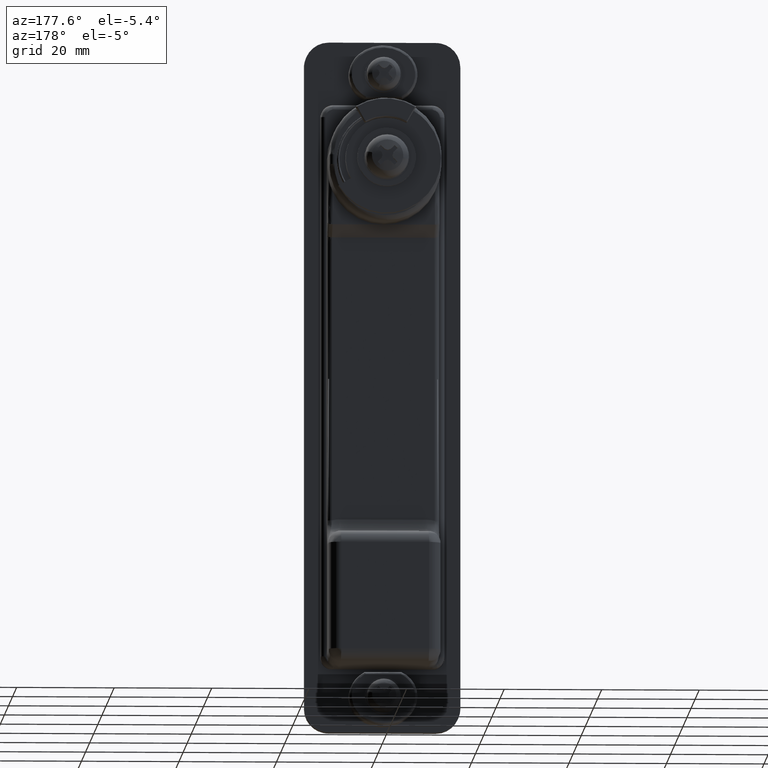
[diagram: clean part render]
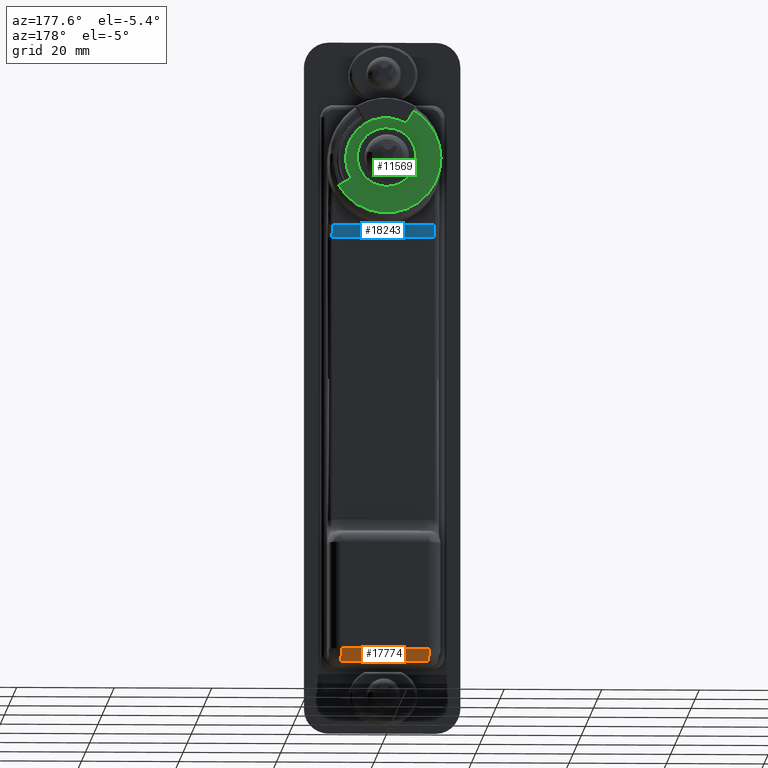
[diagram: same view with three faces highlighted in distinct colors, each labeled with its STEP entity id]
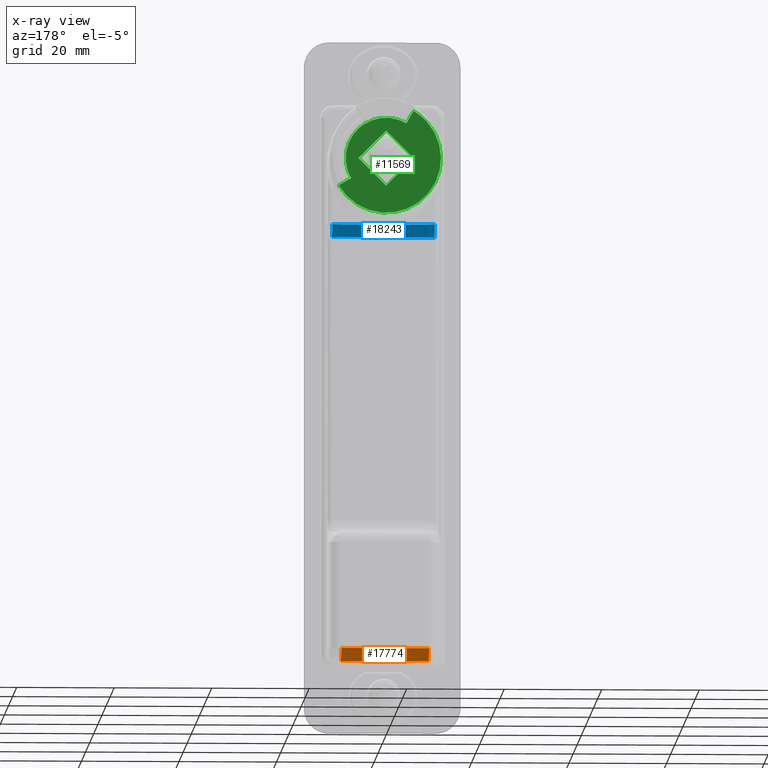
[diagram: x-ray of the same camera — body ghosted, the three highlighted faces saturated]
A machine part, auxiliary view with three faces highlighted in distinct colors.
The next image is the same camera in x-ray (body ghosted, the three faces saturated) — at least one of them is partly hidden behind the body in this view.
Their STEP definitions:

[orange] entity #17774 — the highlighted face is a freeform B-spline surface patch.
#16136=CARTESIAN_POINT('',(12.374752475247600,-9.0,-102.873052866758200));
#16137=VERTEX_POINT('',#16136);
#16152=CARTESIAN_POINT('',(12.374752475247600,9.0,-102.873052866758200));
#16153=VERTEX_POINT('',#16152);
#16167=CARTESIAN_POINT('',(12.374752475247600,9.0,-102.873052866758200));
#16168=CARTESIAN_POINT('',(12.374752475247600,-9.0,-102.873052866758200));
#16169=QUASI_UNIFORM_CURVE('',1,(#16167,#16168),.UNSPECIFIED.,.F.,.U.);
#16170=EDGE_CURVE('',#16153,#16137,#16169,.T.);
#16612=CARTESIAN_POINT('',(14.600000000000000,-9.0,-100.388196517319600));
#16613=VERTEX_POINT('',#16612);
#16628=CARTESIAN_POINT('',(14.600000000000000,-9.0,-100.388196517319600));
#16629=CARTESIAN_POINT('',(14.600000000000005,-9.0,-102.627005538669200));
#16630=CARTESIAN_POINT('',(12.374752475247600,-9.0,-102.873052866758200));
#16638=(BOUNDED_CURVE()B_SPLINE_CURVE(2,(#16628,#16629,#16630),.UNSPECIFIED.,.F.,.U.)CURVE()GEOMETRIC_REPRESENTATION_ITEM()QUASI_UNIFORM_CURVE()RATIONAL_B_SPLINE_CURVE((1.0,0.744949994999342,1.0))REPRESENTATION_ITEM(''));
#16639=EDGE_CURVE('',#16613,#16137,#16638,.T.);
#16668=CARTESIAN_POINT('',(14.600000000000000,9.0,-100.388196517319600));
#16669=VERTEX_POINT('',#16668);
#16670=CARTESIAN_POINT('',(14.600000000000000,9.0,-100.388196517319600));
#16671=CARTESIAN_POINT('',(14.600000000000005,9.0,-102.627005538669200));
#16672=CARTESIAN_POINT('',(12.374752475247600,9.0,-102.873052866758200));
#16680=(BOUNDED_CURVE()B_SPLINE_CURVE(2,(#16670,#16671,#16672),.UNSPECIFIED.,.F.,.U.)CURVE()GEOMETRIC_REPRESENTATION_ITEM()QUASI_UNIFORM_CURVE()RATIONAL_B_SPLINE_CURVE((1.0,0.744949994999342,1.0))REPRESENTATION_ITEM(''));
#16681=EDGE_CURVE('',#16669,#16153,#16680,.T.);
#17750=CARTESIAN_POINT('',(12.296147739319609,-9.450000000000003,-102.880489851652400));
#17751=CARTESIAN_POINT('',(12.296147739319609,9.461250000000000,-102.880489851652400));
#17752=CARTESIAN_POINT('',(14.758359767171408,-9.450000000000003,-102.686709562496390));
#17753=CARTESIAN_POINT('',(14.758359767171408,9.461249999999998,-102.686709562496390));
#17754=CARTESIAN_POINT('',(14.594491329748074,-9.450000000000001,-100.222326068439500));
#17755=CARTESIAN_POINT('',(14.594491329748074,9.461249999999998,-100.222326068439500));
#17763=(BOUNDED_SURFACE()B_SPLINE_SURFACE(1,2,((#17750,#17752,#17754),(#17751,#17753,#17755)),.UNSPECIFIED.,.F.,.F.,.U.)B_SPLINE_SURFACE_WITH_KNOTS((2,2),(3,3),(0.0,18.911249999999999),(0.0,4.106607102734476),.UNSPECIFIED.)GEOMETRIC_REPRESENTATION_ITEM()RATIONAL_B_SPLINE_SURFACE(((1.0,0.709615372246930,0.995025789369894),(1.0,0.709615372246930,0.995025789369894)))REPRESENTATION_ITEM('')SURFACE());
#17764=ORIENTED_EDGE('',*,*,#16639,.T.);
#17765=ORIENTED_EDGE('',*,*,#16170,.F.);
#17766=ORIENTED_EDGE('',*,*,#16681,.F.);
#17767=CARTESIAN_POINT('',(14.600000000000000,-9.0,-100.388196517319600));
#17768=CARTESIAN_POINT('',(14.600000000000000,9.0,-100.388196517319600));
#17769=QUASI_UNIFORM_CURVE('',1,(#17767,#17768),.UNSPECIFIED.,.F.,.U.);
#17770=EDGE_CURVE('',#16613,#16669,#17769,.T.);
#17771=ORIENTED_EDGE('',*,*,#17770,.F.);
#17772=EDGE_LOOP('',(#17764,#17765,#17766,#17771));
#17773=FACE_OUTER_BOUND('',#17772,.T.);
#17774=ADVANCED_FACE('',(#17773),#17763,.T.);

[blue] entity #18243 — the highlighted face is a freeform B-spline surface patch.
#17031=CARTESIAN_POINT('',(7.450462000000099,0.0,-12.500000000000000));
#17032=VERTEX_POINT('',#17031);
#17103=CARTESIAN_POINT('',(7.450462000000000,10.500000000000000,-12.500000000000000));
#17104=VERTEX_POINT('',#17103);
#17144=CARTESIAN_POINT('',(5.0,10.500000000000000,-14.950462000000060));
#17145=VERTEX_POINT('',#17144);
#17146=CARTESIAN_POINT('',(5.0,10.500000000000000,-14.950462000000060));
#17147=CARTESIAN_POINT('',(7.450462000000000,10.500000000000000,-12.500000000000000));
#17148=QUASI_UNIFORM_CURVE('',1,(#17146,#17147),.UNSPECIFIED.,.F.,.U.);
#17149=EDGE_CURVE('',#17145,#17104,#17148,.T.);
#17661=CARTESIAN_POINT('',(5.0,-10.500000000000000,-14.950462000000060));
#17662=VERTEX_POINT('',#17661);
#17700=CARTESIAN_POINT('',(7.450462000000000,-10.500000000000000,-12.500000000000000));
#17701=VERTEX_POINT('',#17700);
#17717=CARTESIAN_POINT('',(7.450462000000000,-10.500000000000000,-12.500000000000000));
#17718=CARTESIAN_POINT('',(5.0,-10.500000000000000,-14.950462000000060));
#17719=QUASI_UNIFORM_CURVE('',1,(#17717,#17718),.UNSPECIFIED.,.F.,.U.);
#17720=EDGE_CURVE('',#17701,#17662,#17719,.T.);
#18204=CARTESIAN_POINT('',(7.450462000000000,-10.500000000000000,-12.500000000000000));
#18205=CARTESIAN_POINT('',(7.450462000000099,0.0,-12.500000000000000));
#18206=QUASI_UNIFORM_CURVE('',1,(#18204,#18205),.UNSPECIFIED.,.F.,.U.);
#18207=EDGE_CURVE('',#17701,#17032,#18206,.T.);
#18217=CARTESIAN_POINT('',(7.450462000000099,0.0,-12.500000000000000));
#18218=CARTESIAN_POINT('',(7.450462000000000,10.500000000000000,-12.500000000000000));
#18219=QUASI_UNIFORM_CURVE('',1,(#18217,#18218),.UNSPECIFIED.,.F.,.U.);
#18220=EDGE_CURVE('',#17032,#17104,#18219,.T.);
#18227=CARTESIAN_POINT('',(7.572862511895801,-11.548949959297930,-12.377599488104201));
#18228=CARTESIAN_POINT('',(4.877599181380488,-11.548949959297930,-15.072862818619511));
#18229=CARTESIAN_POINT('',(7.572862511895801,11.548950522561819,-12.377599488104201));
#18230=CARTESIAN_POINT('',(4.877599181380488,11.548950522561819,-15.072862818619511));
#18231=B_SPLINE_SURFACE_WITH_KNOTS('',1,1,((#18227,#18229),(#18228,#18230)),.UNSPECIFIED.,.F.,.F.,.U.,(2,2),(2,2),(0.0,3.811677956181631),(0.0,23.097900481859750),.UNSPECIFIED.);
#18232=CARTESIAN_POINT('',(5.0,-10.500000000000000,-14.950462000000060));
#18233=CARTESIAN_POINT('',(5.0,10.500000000000000,-14.950462000000060));
#18234=QUASI_UNIFORM_CURVE('',1,(#18232,#18233),.UNSPECIFIED.,.F.,.U.);
#18235=EDGE_CURVE('',#17662,#17145,#18234,.T.);
#18236=ORIENTED_EDGE('',*,*,#18235,.T.);
#18237=ORIENTED_EDGE('',*,*,#17149,.T.);
#18238=ORIENTED_EDGE('',*,*,#18220,.F.);
#18239=ORIENTED_EDGE('',*,*,#18207,.F.);
#18240=ORIENTED_EDGE('',*,*,#17720,.T.);
#18241=EDGE_LOOP('',(#18236,#18237,#18238,#18239,#18240));
#18242=FACE_OUTER_BOUND('',#18241,.T.);
#18243=ADVANCED_FACE('',(#18242),#18231,.T.);

[green] entity #11569 — the highlighted face is a freeform B-spline surface patch.
#11482=CARTESIAN_POINT('',(19.699999999999999,-10.790604894169290,10.790602756938140));
#11483=CARTESIAN_POINT('',(19.699999999999999,12.282398206836980,10.790602756938140));
#11484=CARTESIAN_POINT('',(19.699999999999999,-10.790604894169290,-12.282396625059629));
#11485=CARTESIAN_POINT('',(19.699999999999999,12.282398206836980,-12.282396625059629));
#11486=B_SPLINE_SURFACE_WITH_KNOTS('',1,1,((#11482,#11484),(#11483,#11485)),.UNSPECIFIED.,.F.,.F.,.U.,(2,2),(2,2),(0.0,23.073003101006272),(0.0,23.072999381997771),.UNSPECIFIED.);
#11487=CARTESIAN_POINT('',(19.699999999999999,4.150000000000000,7.188010851410840));
#11488=VERTEX_POINT('',#11487);
#11489=CARTESIAN_POINT('',(19.699999999999999,5.625003409261810,9.742783824235911));
#11490=VERTEX_POINT('',#11489);
#11491=CARTESIAN_POINT('',(19.699999999999999,4.150000000000000,7.188010851410840));
#11492=CARTESIAN_POINT('',(19.699999999999999,5.625003409261810,9.742783824235911));
#11493=QUASI_UNIFORM_CURVE('',1,(#11491,#11492),.UNSPECIFIED.,.F.,.U.);
#11494=EDGE_CURVE('',#11488,#11490,#11493,.T.);
#11495=ORIENTED_EDGE('',*,*,#11494,.F.);
#11496=CARTESIAN_POINT('',(19.699999999999999,-7.188010000000079,-4.150000000000090));
#11497=VERTEX_POINT('',#11496);
#11498=CARTESIAN_POINT('',(19.699999999999999,4.150000000000004,7.188010851410838));
#11499=CARTESIAN_POINT('',(19.699999999999999,-1.365554862608732,10.372417936068144));
#11500=CARTESIAN_POINT('',(19.699999999999999,-5.868986434357962,5.868986133338724));
#11501=CARTESIAN_POINT('',(19.699999999999999,-10.372418006107187,1.365554330609306));
#11502=CARTESIAN_POINT('',(19.699999999999999,-7.188010000000079,-4.150000000000090));
#11510=(BOUNDED_CURVE()B_SPLINE_CURVE(2,(#11498,#11499,#11500,#11501,#11502),.UNSPECIFIED.,.F.,.U.)B_SPLINE_CURVE_WITH_KNOTS((3,2,3),(0.0,0.500000000000000,1.0),.UNSPECIFIED.)CURVE()GEOMETRIC_REPRESENTATION_ITEM()RATIONAL_B_SPLINE_CURVE((1.0,0.793353332485419,1.0,0.793353332485419,1.0))REPRESENTATION_ITEM(''));
#11511=EDGE_CURVE('',#11488,#11497,#11510,.T.);
#11512=ORIENTED_EDGE('',*,*,#11511,.T.);
#11513=CARTESIAN_POINT('',(19.699999999999999,-9.742785792574930,-5.625000000000000));
#11514=VERTEX_POINT('',#11513);
#11515=CARTESIAN_POINT('',(19.699999999999999,-9.742785792574930,-5.625000000000000));
#11516=CARTESIAN_POINT('',(19.699999999999999,-7.188010000000079,-4.150000000000090));
#11517=QUASI_UNIFORM_CURVE('',1,(#11515,#11516),.UNSPECIFIED.,.F.,.U.);
#11518=EDGE_CURVE('',#11514,#11497,#11517,.T.);
#11519=ORIENTED_EDGE('',*,*,#11518,.F.);
#11520=CARTESIAN_POINT('',(19.699999999999999,-9.742785792574933,-5.625000000000003));
#11521=CARTESIAN_POINT('',(19.699999999999999,-5.804118879044665,-12.446971208324907));
#11522=CARTESIAN_POINT('',(19.699999999999999,1.953540706462997,-11.079087449252849));
#11523=CARTESIAN_POINT('',(19.699999999999999,9.711200291970656,-9.711203690180790));
#11524=CARTESIAN_POINT('',(19.699999999999999,11.079086765655870,-1.953544583332838));
#11525=CARTESIAN_POINT('',(19.699999999999999,12.446973239341082,5.804114523515125));
#11526=CARTESIAN_POINT('',(19.699999999999999,5.625003409261813,9.742783824235914));
#11534=(BOUNDED_CURVE()B_SPLINE_CURVE(2,(#11520,#11521,#11522,#11523,#11524,#11525,#11526),.UNSPECIFIED.,.F.,.U.)B_SPLINE_CURVE_WITH_KNOTS((3,2,2,3),(0.0,0.333333333333333,0.666666666666667,1.0),.UNSPECIFIED.)CURVE()GEOMETRIC_REPRESENTATION_ITEM()RATIONAL_B_SPLINE_CURVE((1.0,0.819152077740621,1.0,0.819152077740621,1.0,0.819152077740621,1.0))REPRESENTATION_ITEM(''));
#11535=EDGE_CURVE('',#11514,#11490,#11534,.T.);
#11536=ORIENTED_EDGE('',*,*,#11535,.T.);
#11537=EDGE_LOOP('',(#11495,#11512,#11519,#11536));
#11538=FACE_OUTER_BOUND('',#11537,.T.);
#11539=CARTESIAN_POINT('',(19.699999999999999,-5.656854249492380,4.440892E-016));
#11540=VERTEX_POINT('',#11539);
#11541=CARTESIAN_POINT('',(19.699999999999999,0.0,5.656854249492380));
#11542=VERTEX_POINT('',#11541);
#11543=CARTESIAN_POINT('',(19.699999999999999,-5.656854249492380,4.440892E-016));
#11544=CARTESIAN_POINT('',(19.699999999999999,0.0,5.656854249492380));
#11545=QUASI_UNIFORM_CURVE('',1,(#11543,#11544),.UNSPECIFIED.,.F.,.U.);
#11546=EDGE_CURVE('',#11540,#11542,#11545,.T.);
#11547=ORIENTED_EDGE('',*,*,#11546,.T.);
#11548=CARTESIAN_POINT('',(19.699999999999999,5.656854249492380,-4.440892E-016));
#11549=VERTEX_POINT('',#11548);
#11550=CARTESIAN_POINT('',(19.699999999999999,0.0,5.656854249492380));
#11551=CARTESIAN_POINT('',(19.699999999999999,5.656854249492380,-4.440892E-016));
#11552=QUASI_UNIFORM_CURVE('',1,(#11550,#11551),.UNSPECIFIED.,.F.,.U.);
#11553=EDGE_CURVE('',#11542,#11549,#11552,.T.);
#11554=ORIENTED_EDGE('',*,*,#11553,.T.);
#11555=CARTESIAN_POINT('',(19.699999999999999,-4.440892E-016,-5.656854249492380));
#11556=VERTEX_POINT('',#11555);
#11557=CARTESIAN_POINT('',(19.699999999999999,5.656854249492380,-4.440892E-016));
#11558=CARTESIAN_POINT('',(19.699999999999999,-4.440892E-016,-5.656854249492380));
#11559=QUASI_UNIFORM_CURVE('',1,(#11557,#11558),.UNSPECIFIED.,.F.,.U.);
#11560=EDGE_CURVE('',#11549,#11556,#11559,.T.);
#11561=ORIENTED_EDGE('',*,*,#11560,.T.);
#11562=CARTESIAN_POINT('',(19.699999999999999,-4.440892E-016,-5.656854249492380));
#11563=CARTESIAN_POINT('',(19.699999999999999,-5.656854249492380,4.440892E-016));
#11564=QUASI_UNIFORM_CURVE('',1,(#11562,#11563),.UNSPECIFIED.,.F.,.U.);
#11565=EDGE_CURVE('',#11556,#11540,#11564,.T.);
#11566=ORIENTED_EDGE('',*,*,#11565,.T.);
#11567=EDGE_LOOP('',(#11547,#11554,#11561,#11566));
#11568=FACE_BOUND('',#11567,.T.);
#11569=ADVANCED_FACE('',(#11538,#11568),#11486,.F.);